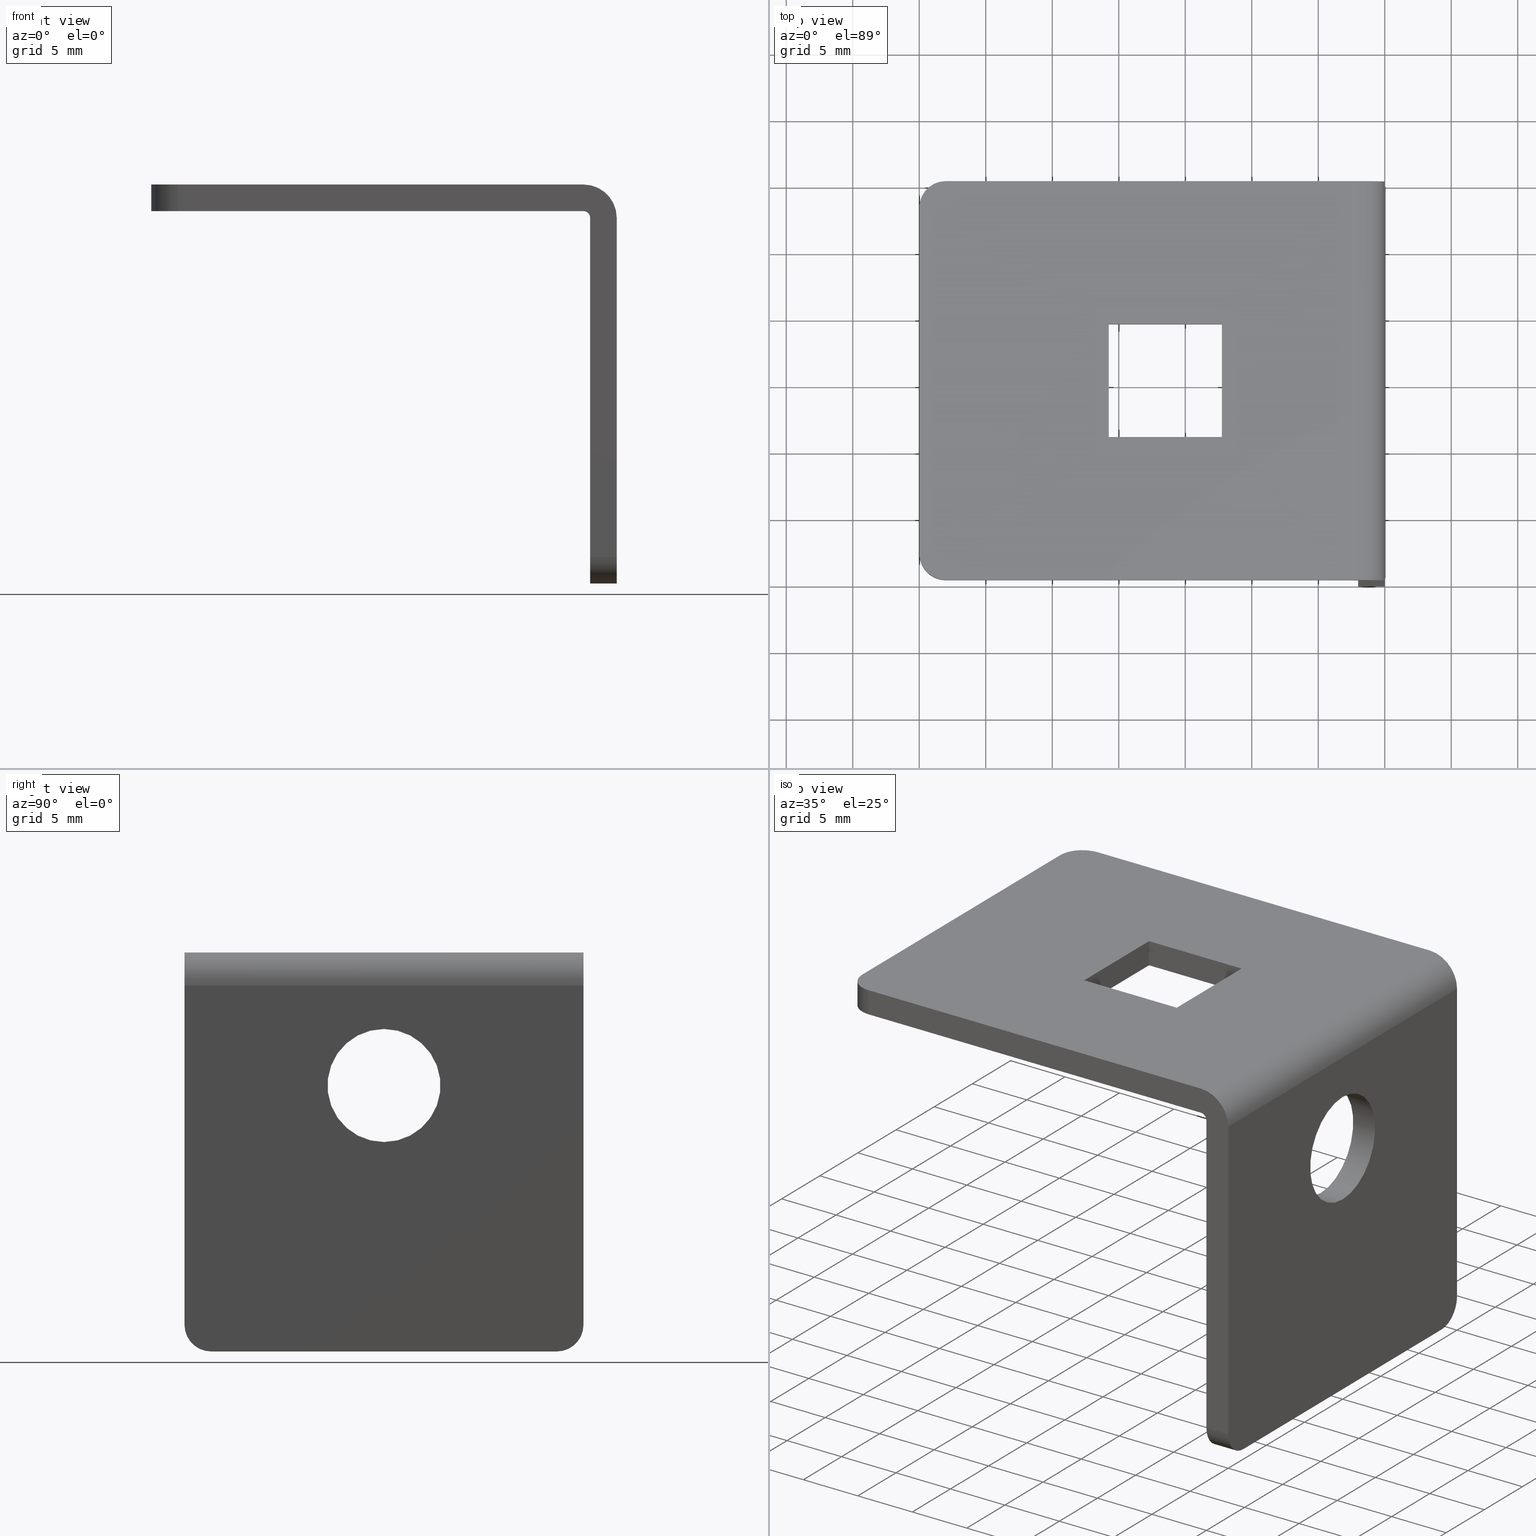
[diagram: canonical four-view strip — front | top / right | iso, engineering-drawing reading convention]
A machine part, canonical four-view strip (front | top / right | iso — engineering-drawing reading convention). The complete STEP part file that produces these views, byte-faithful:
ISO-10303-21;
HEADER;
/* Generated by software containing ST-Developer
 * from STEP Tools, Inc. (www.steptools.com) 
 */

FILE_DESCRIPTION(
/* description */ ('LAMIERINO DI FIX PROF. 60 CON PROFI.30'),
/* implementation_level */ '2;1');

FILE_NAME(
/* name */ 
'Q:\\Catalogo\\2_Accessori Dierre\\Per Download Web e catalogo cartace
o\\CATALOGO ELEMENTI ASSEMBLAGGIO\\PAGINA 21\\DANXX0000169.stp',
/* time_stamp */ '2018-06-19T09:06:23+02:00',
/* author */ ('fzagni'),
/* organization */ (''),
/* preprocessor_version */ 'ST-DEVELOPER v16.1',
/* originating_system */ 'Autodesk Inventor 2016',
/* authorisation */ '');

FILE_SCHEMA (('AUTOMOTIVE_DESIGN { 1 0 10303 214 3 1 1 }'));
ENDSEC;

DATA;
#10=MECHANICAL_DESIGN_GEOMETRIC_PRESENTATION_REPRESENTATION('',(#13),#677);
#11=SHAPE_REPRESENTATION_RELATIONSHIP('SRR','None',#686,#12);
#12=ADVANCED_BREP_SHAPE_REPRESENTATION('',(#14),#676);
#13=STYLED_ITEM('',(#695),#14);
#14=MANIFOLD_SOLID_BREP('Solido1',#407);
#15=FACE_BOUND('',#62,.T.);
#16=FACE_BOUND('',#68,.T.);
#17=FACE_BOUND('',#72,.T.);
#18=FACE_BOUND('',#82,.T.);
#19=FACE_BOUND('',#86,.T.);
#20=PLANE('',#412);
#21=PLANE('',#413);
#22=PLANE('',#418);
#23=PLANE('',#422);
#24=PLANE('',#423);
#25=PLANE('',#427);
#26=PLANE('',#430);
#27=PLANE('',#431);
#28=PLANE('',#432);
#29=PLANE('',#433);
#30=PLANE('',#437);
#31=PLANE('',#438);
#32=PLANE('',#440);
#33=PLANE('',#442);
#34=PLANE('',#444);
#35=PLANE('',#445);
#36=FACE_OUTER_BOUND('',#59,.T.);
#37=FACE_OUTER_BOUND('',#60,.T.);
#38=FACE_OUTER_BOUND('',#61,.T.);
#39=FACE_OUTER_BOUND('',#63,.T.);
#40=FACE_OUTER_BOUND('',#64,.T.);
#41=FACE_OUTER_BOUND('',#65,.T.);
#42=FACE_OUTER_BOUND('',#66,.T.);
#43=FACE_OUTER_BOUND('',#67,.T.);
#44=FACE_OUTER_BOUND('',#69,.T.);
#45=FACE_OUTER_BOUND('',#70,.T.);
#46=FACE_OUTER_BOUND('',#71,.T.);
#47=FACE_OUTER_BOUND('',#73,.T.);
#48=FACE_OUTER_BOUND('',#74,.T.);
#49=FACE_OUTER_BOUND('',#75,.T.);
#50=FACE_OUTER_BOUND('',#76,.T.);
#51=FACE_OUTER_BOUND('',#77,.T.);
#52=FACE_OUTER_BOUND('',#78,.T.);
#53=FACE_OUTER_BOUND('',#79,.T.);
#54=FACE_OUTER_BOUND('',#80,.T.);
#55=FACE_OUTER_BOUND('',#81,.T.);
#56=FACE_OUTER_BOUND('',#83,.T.);
#57=FACE_OUTER_BOUND('',#84,.T.);
#58=FACE_OUTER_BOUND('',#85,.T.);
#59=EDGE_LOOP('',(#269,#270,#271,#272));
#60=EDGE_LOOP('',(#273,#274,#275,#276));
#61=EDGE_LOOP('',(#277,#278,#279,#280,#281,#282));
#62=EDGE_LOOP('',(#283));
#63=EDGE_LOOP('',(#284,#285,#286,#287));
#64=EDGE_LOOP('',(#288,#289,#290,#291));
#65=EDGE_LOOP('',(#292,#293,#294,#295));
#66=EDGE_LOOP('',(#296,#297,#298,#299));
#67=EDGE_LOOP('',(#300,#301,#302,#303,#304,#305));
#68=EDGE_LOOP('',(#306,#307,#308,#309));
#69=EDGE_LOOP('',(#310,#311,#312,#313));
#70=EDGE_LOOP('',(#314,#315,#316,#317));
#71=EDGE_LOOP('',(#318));
#72=EDGE_LOOP('',(#319));
#73=EDGE_LOOP('',(#320,#321,#322,#323));
#74=EDGE_LOOP('',(#324,#325,#326,#327));
#75=EDGE_LOOP('',(#328,#329,#330,#331));
#76=EDGE_LOOP('',(#332,#333,#334,#335));
#77=EDGE_LOOP('',(#336,#337,#338,#339));
#78=EDGE_LOOP('',(#340,#341,#342,#343));
#79=EDGE_LOOP('',(#344,#345,#346,#347));
#80=EDGE_LOOP('',(#348,#349,#350,#351));
#81=EDGE_LOOP('',(#352,#353,#354,#355,#356,#357));
#82=EDGE_LOOP('',(#358));
#83=EDGE_LOOP('',(#359,#360,#361,#362));
#84=EDGE_LOOP('',(#363,#364,#365,#366));
#85=EDGE_LOOP('',(#367,#368,#369,#370,#371,#372));
#86=EDGE_LOOP('',(#373,#374,#375,#376));
#87=LINE('',#568,#127);
#88=LINE('',#571,#128);
#89=LINE('',#574,#129);
#90=LINE('',#576,#130);
#91=LINE('',#577,#131);
#92=LINE('',#580,#132);
#93=LINE('',#582,#133);
#94=LINE('',#584,#134);
#95=LINE('',#591,#135);
#96=LINE('',#594,#136);
#97=LINE('',#595,#137);
#98=LINE('',#601,#138);
#99=LINE('',#604,#139);
#100=LINE('',#607,#140);
#101=LINE('',#609,#141);
#102=LINE('',#610,#142);
#103=LINE('',#613,#143);
#104=LINE('',#617,#144);
#105=LINE('',#618,#145);
#106=LINE('',#621,#146);
#107=LINE('',#623,#147);
#108=LINE('',#625,#148);
#109=LINE('',#626,#149);
#110=LINE('',#629,#150);
#111=LINE('',#632,#151);
#112=LINE('',#635,#152);
#113=LINE('',#636,#153);
#114=LINE('',#643,#154);
#115=LINE('',#644,#155);
#116=LINE('',#645,#156);
#117=LINE('',#648,#157);
#118=LINE('',#649,#158);
#119=LINE('',#652,#159);
#120=LINE('',#653,#160);
#121=LINE('',#655,#161);
#122=LINE('',#658,#162);
#123=LINE('',#662,#163);
#124=LINE('',#663,#164);
#125=LINE('',#670,#165);
#126=LINE('',#672,#166);
#127=VECTOR('',#452,2.);
#128=VECTOR('',#455,2.);
#129=VECTOR('',#458,26.);
#130=VECTOR('',#459,2.);
#131=VECTOR('',#460,26.);
#132=VECTOR('',#463,25.5);
#133=VECTOR('',#464,30.);
#134=VECTOR('',#465,25.5);
#135=VECTOR('',#474,2.);
#136=VECTOR('',#477,2.);
#137=VECTOR('',#478,25.5);
#138=VECTOR('',#483,2.);
#139=VECTOR('',#486,2.);
#140=VECTOR('',#489,30.5);
#141=VECTOR('',#490,2.);
#142=VECTOR('',#491,30.5);
#143=VECTOR('',#494,26.);
#144=VECTOR('',#497,30.5);
#145=VECTOR('',#498,30.);
#146=VECTOR('',#499,8.5);
#147=VECTOR('',#500,8.5);
#148=VECTOR('',#501,8.5);
#149=VECTOR('',#502,8.5);
#150=VECTOR('',#505,2.);
#151=VECTOR('',#508,2.);
#152=VECTOR('',#511,30.5);
#153=VECTOR('',#512,2.);
#154=VECTOR('',#519,8.5);
#155=VECTOR('',#520,2.);
#156=VECTOR('',#521,2.);
#157=VECTOR('',#524,8.5);
#158=VECTOR('',#525,2.);
#159=VECTOR('',#528,8.5);
#160=VECTOR('',#529,2.);
#161=VECTOR('',#532,8.5);
#162=VECTOR('',#535,30.);
#163=VECTOR('',#542,25.5);
#164=VECTOR('',#543,2.);
#165=VECTOR('',#556,30.);
#166=VECTOR('',#559,26.);
#167=CIRCLE('',#410,2.);
#168=CIRCLE('',#411,2.);
#169=CIRCLE('',#414,2.);
#170=CIRCLE('',#415,4.25);
#171=CIRCLE('',#417,2.);
#172=CIRCLE('',#420,2.);
#173=CIRCLE('',#421,2.);
#174=CIRCLE('',#424,2.);
#175=CIRCLE('',#426,2.);
#176=CIRCLE('',#429,4.25);
#177=CIRCLE('',#435,2.5);
#178=CIRCLE('',#436,2.5);
#179=CIRCLE('',#439,0.499999999999998);
#180=CIRCLE('',#441,0.499999999999998);
#181=VERTEX_POINT('',#564);
#182=VERTEX_POINT('',#565);
#183=VERTEX_POINT('',#567);
#184=VERTEX_POINT('',#569);
#185=VERTEX_POINT('',#573);
#186=VERTEX_POINT('',#575);
#187=VERTEX_POINT('',#579);
#188=VERTEX_POINT('',#581);
#189=VERTEX_POINT('',#583);
#190=VERTEX_POINT('',#586);
#191=VERTEX_POINT('',#589);
#192=VERTEX_POINT('',#593);
#193=VERTEX_POINT('',#597);
#194=VERTEX_POINT('',#598);
#195=VERTEX_POINT('',#600);
#196=VERTEX_POINT('',#602);
#197=VERTEX_POINT('',#606);
#198=VERTEX_POINT('',#608);
#199=VERTEX_POINT('',#612);
#200=VERTEX_POINT('',#614);
#201=VERTEX_POINT('',#616);
#202=VERTEX_POINT('',#619);
#203=VERTEX_POINT('',#620);
#204=VERTEX_POINT('',#622);
#205=VERTEX_POINT('',#624);
#206=VERTEX_POINT('',#628);
#207=VERTEX_POINT('',#630);
#208=VERTEX_POINT('',#634);
#209=VERTEX_POINT('',#638);
#210=VERTEX_POINT('',#641);
#211=VERTEX_POINT('',#642);
#212=VERTEX_POINT('',#647);
#213=VERTEX_POINT('',#651);
#214=VERTEX_POINT('',#657);
#215=EDGE_CURVE('',#181,#182,#167,.T.);
#216=EDGE_CURVE('',#182,#183,#87,.T.);
#217=EDGE_CURVE('',#183,#184,#168,.T.);
#218=EDGE_CURVE('',#184,#181,#88,.T.);
#219=EDGE_CURVE('',#185,#184,#89,.T.);
#220=EDGE_CURVE('',#186,#185,#90,.T.);
#221=EDGE_CURVE('',#186,#181,#91,.T.);
#222=EDGE_CURVE('',#183,#187,#92,.T.);
#223=EDGE_CURVE('',#187,#188,#93,.T.);
#224=EDGE_CURVE('',#189,#188,#94,.T.);
#225=EDGE_CURVE('',#185,#189,#169,.T.);
#226=EDGE_CURVE('',#190,#190,#170,.T.);
#227=EDGE_CURVE('',#191,#186,#171,.T.);
#228=EDGE_CURVE('',#189,#191,#95,.T.);
#229=EDGE_CURVE('',#188,#192,#96,.T.);
#230=EDGE_CURVE('',#192,#191,#97,.T.);
#231=EDGE_CURVE('',#193,#194,#172,.T.);
#232=EDGE_CURVE('',#194,#195,#98,.T.);
#233=EDGE_CURVE('',#195,#196,#173,.T.);
#234=EDGE_CURVE('',#196,#193,#99,.T.);
#235=EDGE_CURVE('',#194,#197,#100,.T.);
#236=EDGE_CURVE('',#197,#198,#101,.T.);
#237=EDGE_CURVE('',#198,#195,#102,.T.);
#238=EDGE_CURVE('',#199,#193,#103,.T.);
#239=EDGE_CURVE('',#200,#199,#174,.T.);
#240=EDGE_CURVE('',#201,#200,#104,.T.);
#241=EDGE_CURVE('',#201,#197,#105,.T.);
#242=EDGE_CURVE('',#202,#203,#106,.T.);
#243=EDGE_CURVE('',#203,#204,#107,.T.);
#244=EDGE_CURVE('',#204,#205,#108,.T.);
#245=EDGE_CURVE('',#205,#202,#109,.T.);
#246=EDGE_CURVE('',#199,#206,#110,.T.);
#247=EDGE_CURVE('',#206,#207,#175,.T.);
#248=EDGE_CURVE('',#207,#200,#111,.T.);
#249=EDGE_CURVE('',#207,#208,#112,.T.);
#250=EDGE_CURVE('',#208,#201,#113,.T.);
#251=EDGE_CURVE('',#209,#209,#176,.T.);
#252=EDGE_CURVE('',#210,#211,#114,.T.);
#253=EDGE_CURVE('',#210,#203,#115,.T.);
#254=EDGE_CURVE('',#211,#202,#116,.T.);
#255=EDGE_CURVE('',#212,#210,#117,.T.);
#256=EDGE_CURVE('',#212,#204,#118,.T.);
#257=EDGE_CURVE('',#213,#212,#119,.T.);
#258=EDGE_CURVE('',#213,#205,#120,.T.);
#259=EDGE_CURVE('',#211,#213,#121,.T.);
#260=EDGE_CURVE('',#192,#214,#122,.T.);
#261=EDGE_CURVE('',#197,#192,#177,.T.);
#262=EDGE_CURVE('',#214,#201,#178,.T.);
#263=EDGE_CURVE('',#182,#214,#123,.T.);
#264=EDGE_CURVE('',#214,#187,#124,.T.);
#265=EDGE_CURVE('',#188,#198,#179,.T.);
#266=EDGE_CURVE('',#187,#208,#180,.T.);
#267=EDGE_CURVE('',#198,#208,#125,.T.);
#268=EDGE_CURVE('',#196,#206,#126,.T.);
#269=ORIENTED_EDGE('',*,*,#215,.T.);
#270=ORIENTED_EDGE('',*,*,#216,.T.);
#271=ORIENTED_EDGE('',*,*,#217,.T.);
#272=ORIENTED_EDGE('',*,*,#218,.T.);
#273=ORIENTED_EDGE('',*,*,#218,.F.);
#274=ORIENTED_EDGE('',*,*,#219,.F.);
#275=ORIENTED_EDGE('',*,*,#220,.F.);
#276=ORIENTED_EDGE('',*,*,#221,.T.);
#277=ORIENTED_EDGE('',*,*,#217,.F.);
#278=ORIENTED_EDGE('',*,*,#222,.T.);
#279=ORIENTED_EDGE('',*,*,#223,.T.);
#280=ORIENTED_EDGE('',*,*,#224,.F.);
#281=ORIENTED_EDGE('',*,*,#225,.F.);
#282=ORIENTED_EDGE('',*,*,#219,.T.);
#283=ORIENTED_EDGE('',*,*,#226,.T.);
#284=ORIENTED_EDGE('',*,*,#227,.T.);
#285=ORIENTED_EDGE('',*,*,#220,.T.);
#286=ORIENTED_EDGE('',*,*,#225,.T.);
#287=ORIENTED_EDGE('',*,*,#228,.T.);
#288=ORIENTED_EDGE('',*,*,#228,.F.);
#289=ORIENTED_EDGE('',*,*,#224,.T.);
#290=ORIENTED_EDGE('',*,*,#229,.T.);
#291=ORIENTED_EDGE('',*,*,#230,.T.);
#292=ORIENTED_EDGE('',*,*,#231,.T.);
#293=ORIENTED_EDGE('',*,*,#232,.T.);
#294=ORIENTED_EDGE('',*,*,#233,.T.);
#295=ORIENTED_EDGE('',*,*,#234,.T.);
#296=ORIENTED_EDGE('',*,*,#232,.F.);
#297=ORIENTED_EDGE('',*,*,#235,.T.);
#298=ORIENTED_EDGE('',*,*,#236,.T.);
#299=ORIENTED_EDGE('',*,*,#237,.T.);
#300=ORIENTED_EDGE('',*,*,#231,.F.);
#301=ORIENTED_EDGE('',*,*,#238,.F.);
#302=ORIENTED_EDGE('',*,*,#239,.F.);
#303=ORIENTED_EDGE('',*,*,#240,.F.);
#304=ORIENTED_EDGE('',*,*,#241,.T.);
#305=ORIENTED_EDGE('',*,*,#235,.F.);
#306=ORIENTED_EDGE('',*,*,#242,.T.);
#307=ORIENTED_EDGE('',*,*,#243,.T.);
#308=ORIENTED_EDGE('',*,*,#244,.T.);
#309=ORIENTED_EDGE('',*,*,#245,.T.);
#310=ORIENTED_EDGE('',*,*,#239,.T.);
#311=ORIENTED_EDGE('',*,*,#246,.T.);
#312=ORIENTED_EDGE('',*,*,#247,.T.);
#313=ORIENTED_EDGE('',*,*,#248,.T.);
#314=ORIENTED_EDGE('',*,*,#248,.F.);
#315=ORIENTED_EDGE('',*,*,#249,.T.);
#316=ORIENTED_EDGE('',*,*,#250,.T.);
#317=ORIENTED_EDGE('',*,*,#240,.T.);
#318=ORIENTED_EDGE('',*,*,#251,.F.);
#319=ORIENTED_EDGE('',*,*,#226,.F.);
#320=ORIENTED_EDGE('',*,*,#252,.F.);
#321=ORIENTED_EDGE('',*,*,#253,.T.);
#322=ORIENTED_EDGE('',*,*,#242,.F.);
#323=ORIENTED_EDGE('',*,*,#254,.F.);
#324=ORIENTED_EDGE('',*,*,#255,.F.);
#325=ORIENTED_EDGE('',*,*,#256,.T.);
#326=ORIENTED_EDGE('',*,*,#243,.F.);
#327=ORIENTED_EDGE('',*,*,#253,.F.);
#328=ORIENTED_EDGE('',*,*,#257,.F.);
#329=ORIENTED_EDGE('',*,*,#258,.T.);
#330=ORIENTED_EDGE('',*,*,#244,.F.);
#331=ORIENTED_EDGE('',*,*,#256,.F.);
#332=ORIENTED_EDGE('',*,*,#259,.F.);
#333=ORIENTED_EDGE('',*,*,#254,.T.);
#334=ORIENTED_EDGE('',*,*,#245,.F.);
#335=ORIENTED_EDGE('',*,*,#258,.F.);
#336=ORIENTED_EDGE('',*,*,#260,.F.);
#337=ORIENTED_EDGE('',*,*,#261,.F.);
#338=ORIENTED_EDGE('',*,*,#241,.F.);
#339=ORIENTED_EDGE('',*,*,#262,.F.);
#340=ORIENTED_EDGE('',*,*,#216,.F.);
#341=ORIENTED_EDGE('',*,*,#263,.T.);
#342=ORIENTED_EDGE('',*,*,#264,.T.);
#343=ORIENTED_EDGE('',*,*,#222,.F.);
#344=ORIENTED_EDGE('',*,*,#229,.F.);
#345=ORIENTED_EDGE('',*,*,#265,.T.);
#346=ORIENTED_EDGE('',*,*,#236,.F.);
#347=ORIENTED_EDGE('',*,*,#261,.T.);
#348=ORIENTED_EDGE('',*,*,#264,.F.);
#349=ORIENTED_EDGE('',*,*,#262,.T.);
#350=ORIENTED_EDGE('',*,*,#250,.F.);
#351=ORIENTED_EDGE('',*,*,#266,.F.);
#352=ORIENTED_EDGE('',*,*,#215,.F.);
#353=ORIENTED_EDGE('',*,*,#221,.F.);
#354=ORIENTED_EDGE('',*,*,#227,.F.);
#355=ORIENTED_EDGE('',*,*,#230,.F.);
#356=ORIENTED_EDGE('',*,*,#260,.T.);
#357=ORIENTED_EDGE('',*,*,#263,.F.);
#358=ORIENTED_EDGE('',*,*,#251,.T.);
#359=ORIENTED_EDGE('',*,*,#223,.F.);
#360=ORIENTED_EDGE('',*,*,#266,.T.);
#361=ORIENTED_EDGE('',*,*,#267,.F.);
#362=ORIENTED_EDGE('',*,*,#265,.F.);
#363=ORIENTED_EDGE('',*,*,#234,.F.);
#364=ORIENTED_EDGE('',*,*,#268,.T.);
#365=ORIENTED_EDGE('',*,*,#246,.F.);
#366=ORIENTED_EDGE('',*,*,#238,.T.);
#367=ORIENTED_EDGE('',*,*,#233,.F.);
#368=ORIENTED_EDGE('',*,*,#237,.F.);
#369=ORIENTED_EDGE('',*,*,#267,.T.);
#370=ORIENTED_EDGE('',*,*,#249,.F.);
#371=ORIENTED_EDGE('',*,*,#247,.F.);
#372=ORIENTED_EDGE('',*,*,#268,.F.);
#373=ORIENTED_EDGE('',*,*,#252,.T.);
#374=ORIENTED_EDGE('',*,*,#259,.T.);
#375=ORIENTED_EDGE('',*,*,#257,.T.);
#376=ORIENTED_EDGE('',*,*,#255,.T.);
#377=CYLINDRICAL_SURFACE('',#409,2.);
#378=CYLINDRICAL_SURFACE('',#416,2.);
#379=CYLINDRICAL_SURFACE('',#419,2.);
#380=CYLINDRICAL_SURFACE('',#425,2.);
#381=CYLINDRICAL_SURFACE('',#428,4.25);
#382=CYLINDRICAL_SURFACE('',#434,2.5);
#383=CYLINDRICAL_SURFACE('',#443,0.499999999999998);
#384=ADVANCED_FACE('',(#36),#377,.T.);
#385=ADVANCED_FACE('',(#37),#20,.T.);
#386=ADVANCED_FACE('',(#38,#15),#21,.F.);
#387=ADVANCED_FACE('',(#39),#378,.T.);
#388=ADVANCED_FACE('',(#40),#22,.T.);
#389=ADVANCED_FACE('',(#41),#379,.T.);
#390=ADVANCED_FACE('',(#42),#23,.T.);
#391=ADVANCED_FACE('',(#43,#16),#24,.T.);
#392=ADVANCED_FACE('',(#44),#380,.T.);
#393=ADVANCED_FACE('',(#45),#25,.T.);
#394=ADVANCED_FACE('',(#46,#17),#381,.F.);
#395=ADVANCED_FACE('',(#47),#26,.F.);
#396=ADVANCED_FACE('',(#48),#27,.F.);
#397=ADVANCED_FACE('',(#49),#28,.F.);
#398=ADVANCED_FACE('',(#50),#29,.F.);
#399=ADVANCED_FACE('',(#51),#382,.T.);
#400=ADVANCED_FACE('',(#52),#30,.T.);
#401=ADVANCED_FACE('',(#53),#31,.T.);
#402=ADVANCED_FACE('',(#54),#32,.T.);
#403=ADVANCED_FACE('',(#55,#18),#33,.T.);
#404=ADVANCED_FACE('',(#56),#383,.F.);
#405=ADVANCED_FACE('',(#57),#34,.T.);
#406=ADVANCED_FACE('',(#58,#19),#35,.F.);
#407=CLOSED_SHELL('',(#384,#385,#386,#387,#388,#389,#390,#391,#392,#393,
#394,#395,#396,#397,#398,#399,#400,#401,#402,#403,#404,#405,#406));
#408=AXIS2_PLACEMENT_3D('placement',#562,#446,#447);
#409=AXIS2_PLACEMENT_3D('',#563,#448,#449);
#410=AXIS2_PLACEMENT_3D('',#566,#450,#451);
#411=AXIS2_PLACEMENT_3D('',#570,#453,#454);
#412=AXIS2_PLACEMENT_3D('',#572,#456,#457);
#413=AXIS2_PLACEMENT_3D('',#578,#461,#462);
#414=AXIS2_PLACEMENT_3D('',#585,#466,#467);
#415=AXIS2_PLACEMENT_3D('',#587,#468,#469);
#416=AXIS2_PLACEMENT_3D('',#588,#470,#471);
#417=AXIS2_PLACEMENT_3D('',#590,#472,#473);
#418=AXIS2_PLACEMENT_3D('',#592,#475,#476);
#419=AXIS2_PLACEMENT_3D('',#596,#479,#480);
#420=AXIS2_PLACEMENT_3D('',#599,#481,#482);
#421=AXIS2_PLACEMENT_3D('',#603,#484,#485);
#422=AXIS2_PLACEMENT_3D('',#605,#487,#488);
#423=AXIS2_PLACEMENT_3D('',#611,#492,#493);
#424=AXIS2_PLACEMENT_3D('',#615,#495,#496);
#425=AXIS2_PLACEMENT_3D('',#627,#503,#504);
#426=AXIS2_PLACEMENT_3D('',#631,#506,#507);
#427=AXIS2_PLACEMENT_3D('',#633,#509,#510);
#428=AXIS2_PLACEMENT_3D('',#637,#513,#514);
#429=AXIS2_PLACEMENT_3D('',#639,#515,#516);
#430=AXIS2_PLACEMENT_3D('',#640,#517,#518);
#431=AXIS2_PLACEMENT_3D('',#646,#522,#523);
#432=AXIS2_PLACEMENT_3D('',#650,#526,#527);
#433=AXIS2_PLACEMENT_3D('',#654,#530,#531);
#434=AXIS2_PLACEMENT_3D('',#656,#533,#534);
#435=AXIS2_PLACEMENT_3D('',#659,#536,#537);
#436=AXIS2_PLACEMENT_3D('',#660,#538,#539);
#437=AXIS2_PLACEMENT_3D('',#661,#540,#541);
#438=AXIS2_PLACEMENT_3D('',#664,#544,#545);
#439=AXIS2_PLACEMENT_3D('',#665,#546,#547);
#440=AXIS2_PLACEMENT_3D('',#666,#548,#549);
#441=AXIS2_PLACEMENT_3D('',#667,#550,#551);
#442=AXIS2_PLACEMENT_3D('',#668,#552,#553);
#443=AXIS2_PLACEMENT_3D('',#669,#554,#555);
#444=AXIS2_PLACEMENT_3D('',#671,#557,#558);
#445=AXIS2_PLACEMENT_3D('',#673,#560,#561);
#446=DIRECTION('axis',(0.,0.,1.));
#447=DIRECTION('refdir',(1.,0.,0.));
#448=DIRECTION('center_axis',(1.,0.,-1.71512449944288E-15));
#449=DIRECTION('ref_axis',(0.,-0.707106781186548,-0.707106781186548));
#450=DIRECTION('center_axis',(-1.,1.74451110989651E-19,1.71378285013161E-15));
#451=DIRECTION('ref_axis',(0.,-0.707106781186548,-0.707106781186548));
#452=DIRECTION('',(-1.,0.,1.71512449944288E-15));
#453=DIRECTION('center_axis',(1.,1.74451110989651E-19,-1.71378285013161E-15));
#454=DIRECTION('ref_axis',(0.,-0.707106781186548,-0.707106781186548));
#455=DIRECTION('',(1.,0.,-1.71512449944288E-15));
#456=DIRECTION('center_axis',(-1.71512449944288E-15,0.,-1.));
#457=DIRECTION('ref_axis',(-1.,0.,1.77635683940025E-15));
#458=DIRECTION('',(0.,-1.,0.));
#459=DIRECTION('',(-1.,0.,1.71512449944288E-15));
#460=DIRECTION('',(0.,-1.,0.));
#461=DIRECTION('center_axis',(1.,1.74451110989651E-19,-1.71378285013161E-15));
#462=DIRECTION('ref_axis',(-1.4210854715202E-15,0.,-1.));
#463=DIRECTION('',(1.77635683940025E-15,0.,1.));
#464=DIRECTION('',(-1.74451110989651E-19,1.,2.9920537441338E-34));
#465=DIRECTION('',(1.77635683940025E-15,0.,1.));
#466=DIRECTION('center_axis',(1.,1.74451110989651E-19,-1.71378285013161E-15));
#467=DIRECTION('ref_axis',(0.,0.707106781186548,-0.707106781186548));
#468=DIRECTION('center_axis',(1.,1.74451110989651E-19,-1.71378285013161E-15));
#469=DIRECTION('ref_axis',(1.71378285013161E-15,0.,1.));
#470=DIRECTION('center_axis',(1.,0.,-1.71512449944288E-15));
#471=DIRECTION('ref_axis',(0.,0.707106781186548,-0.707106781186548));
#472=DIRECTION('center_axis',(-1.,1.74451110989651E-19,1.71378285013161E-15));
#473=DIRECTION('ref_axis',(0.,0.707106781186548,-0.707106781186548));
#474=DIRECTION('',(1.,0.,-1.71512449944288E-15));
#475=DIRECTION('center_axis',(0.,1.,0.));
#476=DIRECTION('ref_axis',(1.,0.,-1.70974345792274E-15));
#477=DIRECTION('',(1.,0.,-1.71512449944288E-15));
#478=DIRECTION('',(-1.71512449944288E-15,0.,-1.));
#479=DIRECTION('center_axis',(0.,0.,1.));
#480=DIRECTION('ref_axis',(-0.707106781186547,0.707106781186548,0.));
#481=DIRECTION('center_axis',(0.,0.,-1.));
#482=DIRECTION('ref_axis',(-0.707106781186547,0.707106781186548,0.));
#483=DIRECTION('',(0.,0.,-1.));
#484=DIRECTION('center_axis',(0.,0.,1.));
#485=DIRECTION('ref_axis',(-0.707106781186547,0.707106781186548,0.));
#486=DIRECTION('',(0.,0.,1.));
#487=DIRECTION('center_axis',(0.,1.,0.));
#488=DIRECTION('ref_axis',(0.,0.,1.));
#489=DIRECTION('',(1.,0.,0.));
#490=DIRECTION('',(0.,0.,-1.));
#491=DIRECTION('',(-1.,0.,0.));
#492=DIRECTION('center_axis',(0.,0.,1.));
#493=DIRECTION('ref_axis',(1.,0.,0.));
#494=DIRECTION('',(0.,1.,0.));
#495=DIRECTION('center_axis',(0.,0.,-1.));
#496=DIRECTION('ref_axis',(-0.707106781186548,-0.707106781186547,0.));
#497=DIRECTION('',(-1.,0.,0.));
#498=DIRECTION('',(0.,1.,0.));
#499=DIRECTION('',(0.,-1.,0.));
#500=DIRECTION('',(-1.,0.,0.));
#501=DIRECTION('',(0.,1.,0.));
#502=DIRECTION('',(1.,0.,0.));
#503=DIRECTION('center_axis',(0.,0.,1.));
#504=DIRECTION('ref_axis',(-0.707106781186548,-0.707106781186547,0.));
#505=DIRECTION('',(0.,0.,-1.));
#506=DIRECTION('center_axis',(0.,0.,1.));
#507=DIRECTION('ref_axis',(-0.707106781186548,-0.707106781186547,0.));
#508=DIRECTION('',(0.,0.,1.));
#509=DIRECTION('center_axis',(0.,-1.,0.));
#510=DIRECTION('ref_axis',(0.,0.,-1.));
#511=DIRECTION('',(1.,0.,0.));
#512=DIRECTION('',(0.,0.,1.));
#513=DIRECTION('center_axis',(-1.,-1.74451110989651E-19,1.71378285013161E-15));
#514=DIRECTION('ref_axis',(1.71378285013161E-15,0.,1.));
#515=DIRECTION('center_axis',(-1.,1.74451110989651E-19,1.71378285013161E-15));
#516=DIRECTION('ref_axis',(1.71378285013161E-15,0.,1.));
#517=DIRECTION('center_axis',(1.,0.,0.));
#518=DIRECTION('ref_axis',(0.,1.,0.));
#519=DIRECTION('',(0.,1.,0.));
#520=DIRECTION('',(0.,0.,1.));
#521=DIRECTION('',(0.,0.,1.));
#522=DIRECTION('center_axis',(0.,-1.,0.));
#523=DIRECTION('ref_axis',(1.,0.,0.));
#524=DIRECTION('',(1.,0.,0.));
#525=DIRECTION('',(0.,0.,1.));
#526=DIRECTION('center_axis',(-1.,0.,0.));
#527=DIRECTION('ref_axis',(0.,-1.,0.));
#528=DIRECTION('',(0.,-1.,0.));
#529=DIRECTION('',(0.,0.,1.));
#530=DIRECTION('center_axis',(0.,1.,0.));
#531=DIRECTION('ref_axis',(-1.,0.,0.));
#532=DIRECTION('',(-1.,0.,0.));
#533=DIRECTION('center_axis',(0.,1.,0.));
#534=DIRECTION('ref_axis',(0.,0.,1.));
#535=DIRECTION('',(-1.74451110989651E-19,-1.,2.99205374413381E-34));
#536=DIRECTION('center_axis',(0.,1.,0.));
#537=DIRECTION('ref_axis',(3.5527136788005E-15,0.,1.));
#538=DIRECTION('center_axis',(0.,-1.,0.));
#539=DIRECTION('ref_axis',(1.,0.,-1.72084568816899E-15));
#540=DIRECTION('center_axis',(0.,-1.,0.));
#541=DIRECTION('ref_axis',(-1.,0.,1.71529457304587E-15));
#542=DIRECTION('',(1.77635683940025E-15,0.,1.));
#543=DIRECTION('',(-1.,0.,1.71512449944288E-15));
#544=DIRECTION('center_axis',(0.,1.,0.));
#545=DIRECTION('ref_axis',(0.,0.,1.));
#546=DIRECTION('center_axis',(0.,-1.,0.));
#547=DIRECTION('ref_axis',(1.,0.,-1.66533453693774E-15));
#548=DIRECTION('center_axis',(0.,-1.,0.));
#549=DIRECTION('ref_axis',(0.,0.,-1.));
#550=DIRECTION('center_axis',(0.,-1.,0.));
#551=DIRECTION('ref_axis',(1.,0.,-1.66533453693774E-15));
#552=DIRECTION('center_axis',(1.,-1.74451110989651E-19,-1.71378285013161E-15));
#553=DIRECTION('ref_axis',(-1.4210854715202E-15,0.,-1.));
#554=DIRECTION('center_axis',(0.,1.,0.));
#555=DIRECTION('ref_axis',(0.,0.,1.));
#556=DIRECTION('',(0.,-1.,0.));
#557=DIRECTION('center_axis',(-1.,0.,0.));
#558=DIRECTION('ref_axis',(0.,0.,1.));
#559=DIRECTION('',(0.,-1.,0.));
#560=DIRECTION('center_axis',(0.,0.,1.));
#561=DIRECTION('ref_axis',(1.,0.,0.));
#562=CARTESIAN_POINT('',(0.,0.,0.));
#563=CARTESIAN_POINT('Origin',(32.9999999999999,2.,-26.));
#564=CARTESIAN_POINT('',(34.9999999999999,2.,-28.));
#565=CARTESIAN_POINT('',(34.9999999999999,0.,-26.));
#566=CARTESIAN_POINT('Origin',(34.9999999999999,2.,-26.));
#567=CARTESIAN_POINT('',(32.9999999999999,0.,-26.));
#568=CARTESIAN_POINT('',(32.9999999999999,0.,-26.));
#569=CARTESIAN_POINT('',(32.9999999999999,2.,-28.));
#570=CARTESIAN_POINT('Origin',(32.9999999999999,2.,-26.));
#571=CARTESIAN_POINT('',(32.9999999999999,2.,-28.));
#572=CARTESIAN_POINT('Origin',(32.9999999999999,30.,-28.));
#573=CARTESIAN_POINT('',(32.9999999999999,28.,-28.));
#574=CARTESIAN_POINT('',(32.9999999999999,30.,-28.));
#575=CARTESIAN_POINT('',(34.9999999999999,28.,-28.));
#576=CARTESIAN_POINT('',(32.9999999999999,28.,-28.));
#577=CARTESIAN_POINT('',(34.9999999999999,30.,-28.));
#578=CARTESIAN_POINT('Origin',(33.,15.,-13.25));
#579=CARTESIAN_POINT('',(33.,0.,-0.499999999999998));
#580=CARTESIAN_POINT('',(33.,0.,3.50000000000001));
#581=CARTESIAN_POINT('',(33.,30.,-0.499999999999998));
#582=CARTESIAN_POINT('',(33.,15.,-0.500000000000003));
#583=CARTESIAN_POINT('',(32.9999999999999,30.,-26.));
#584=CARTESIAN_POINT('',(33.,30.,3.50000000000001));
#585=CARTESIAN_POINT('Origin',(32.9999999999999,28.,-26.));
#586=CARTESIAN_POINT('',(33.,15.,-3.75));
#587=CARTESIAN_POINT('Origin',(33.,15.,-8.));
#588=CARTESIAN_POINT('Origin',(32.9999999999999,28.,-26.));
#589=CARTESIAN_POINT('',(34.9999999999999,30.,-26.));
#590=CARTESIAN_POINT('Origin',(34.9999999999999,28.,-26.));
#591=CARTESIAN_POINT('',(32.9999999999999,30.,-26.));
#592=CARTESIAN_POINT('Origin',(33.,30.,-0.499999999999998));
#593=CARTESIAN_POINT('',(35.,30.,-0.500000000000003));
#594=CARTESIAN_POINT('',(33.3866197723676,30.,-0.499999999999998));
#595=CARTESIAN_POINT('',(35.,30.,-0.500000000000003));
#596=CARTESIAN_POINT('Origin',(2.,28.,0.));
#597=CARTESIAN_POINT('',(0.,28.,2.));
#598=CARTESIAN_POINT('',(2.,30.,2.));
#599=CARTESIAN_POINT('Origin',(2.,28.,2.));
#600=CARTESIAN_POINT('',(2.,30.,0.));
#601=CARTESIAN_POINT('',(2.,30.,0.));
#602=CARTESIAN_POINT('',(0.,28.,0.));
#603=CARTESIAN_POINT('Origin',(2.,28.,0.));
#604=CARTESIAN_POINT('',(0.,28.,0.));
#605=CARTESIAN_POINT('Origin',(0.,30.,0.));
#606=CARTESIAN_POINT('',(32.5,30.,2.));
#607=CARTESIAN_POINT('',(35.,30.,2.));
#608=CARTESIAN_POINT('',(32.5,30.,0.));
#609=CARTESIAN_POINT('',(32.5,30.,0.));
#610=CARTESIAN_POINT('',(35.,30.,0.));
#611=CARTESIAN_POINT('Origin',(17.5,15.,2.));
#612=CARTESIAN_POINT('',(0.,2.,2.));
#613=CARTESIAN_POINT('',(0.,30.,2.));
#614=CARTESIAN_POINT('',(2.,0.,2.));
#615=CARTESIAN_POINT('Origin',(2.,2.,2.));
#616=CARTESIAN_POINT('',(32.5,0.,2.));
#617=CARTESIAN_POINT('',(0.,0.,2.));
#618=CARTESIAN_POINT('',(32.5,7.5,2.));
#619=CARTESIAN_POINT('',(22.75,19.25,2.));
#620=CARTESIAN_POINT('',(22.75,10.75,2.));
#621=CARTESIAN_POINT('',(22.75,12.875,2.));
#622=CARTESIAN_POINT('',(14.25,10.75,2.));
#623=CARTESIAN_POINT('',(15.875,10.75,2.));
#624=CARTESIAN_POINT('',(14.25,19.25,2.));
#625=CARTESIAN_POINT('',(14.25,17.125,2.));
#626=CARTESIAN_POINT('',(20.125,19.25,2.));
#627=CARTESIAN_POINT('Origin',(2.,2.,0.));
#628=CARTESIAN_POINT('',(0.,2.,0.));
#629=CARTESIAN_POINT('',(0.,2.,0.));
#630=CARTESIAN_POINT('',(2.,0.,0.));
#631=CARTESIAN_POINT('Origin',(2.,2.,0.));
#632=CARTESIAN_POINT('',(2.,0.,0.));
#633=CARTESIAN_POINT('Origin',(35.,0.,0.));
#634=CARTESIAN_POINT('',(32.5,0.,0.));
#635=CARTESIAN_POINT('',(0.,0.,0.));
#636=CARTESIAN_POINT('',(32.5,0.,0.));
#637=CARTESIAN_POINT('Origin',(88.,15.,-8.00000000000009));
#638=CARTESIAN_POINT('',(35.,15.,-12.25));
#639=CARTESIAN_POINT('Origin',(35.,15.,-8.));
#640=CARTESIAN_POINT('Origin',(22.75,10.75,0.));
#641=CARTESIAN_POINT('',(22.75,10.75,0.));
#642=CARTESIAN_POINT('',(22.75,19.25,0.));
#643=CARTESIAN_POINT('',(22.75,12.875,0.));
#644=CARTESIAN_POINT('',(22.75,10.75,0.));
#645=CARTESIAN_POINT('',(22.75,19.25,0.));
#646=CARTESIAN_POINT('Origin',(14.25,10.75,0.));
#647=CARTESIAN_POINT('',(14.25,10.75,0.));
#648=CARTESIAN_POINT('',(15.875,10.75,0.));
#649=CARTESIAN_POINT('',(14.25,10.75,0.));
#650=CARTESIAN_POINT('Origin',(14.25,19.25,0.));
#651=CARTESIAN_POINT('',(14.25,19.25,0.));
#652=CARTESIAN_POINT('',(14.25,17.125,0.));
#653=CARTESIAN_POINT('',(14.25,19.25,0.));
#654=CARTESIAN_POINT('Origin',(22.75,19.25,0.));
#655=CARTESIAN_POINT('',(20.125,19.25,0.));
#656=CARTESIAN_POINT('Origin',(32.5,15.,-0.499999999999998));
#657=CARTESIAN_POINT('',(35.,0.,-0.500000000000003));
#658=CARTESIAN_POINT('',(35.,15.,-0.500000000000007));
#659=CARTESIAN_POINT('Origin',(32.5,30.,-0.499999999999998));
#660=CARTESIAN_POINT('Origin',(32.5,0.,-0.499999999999998));
#661=CARTESIAN_POINT('Origin',(33.,0.,-0.499999999999998));
#662=CARTESIAN_POINT('',(35.,0.,3.5));
#663=CARTESIAN_POINT('',(33.3866197723676,0.,-0.499999999999998));
#664=CARTESIAN_POINT('Origin',(33.,30.,-0.499999999999999));
#665=CARTESIAN_POINT('Origin',(32.5,30.,-0.499999999999998));
#666=CARTESIAN_POINT('Origin',(35.,0.,-0.500000000000003));
#667=CARTESIAN_POINT('Origin',(32.5,0.,-0.499999999999998));
#668=CARTESIAN_POINT('Origin',(35.,15.,-13.25));
#669=CARTESIAN_POINT('Origin',(32.5,15.,-0.499999999999998));
#670=CARTESIAN_POINT('',(32.5,7.5,0.));
#671=CARTESIAN_POINT('Origin',(0.,0.,0.));
#672=CARTESIAN_POINT('',(0.,30.,0.));
#673=CARTESIAN_POINT('Origin',(17.5,15.,0.));
#674=UNCERTAINTY_MEASURE_WITH_UNIT(LENGTH_MEASURE(0.01),#678,
'DISTANCE_ACCURACY_VALUE',
'Maximum model space distance between geometric entities at asserted c
onnectivities');
#675=UNCERTAINTY_MEASURE_WITH_UNIT(LENGTH_MEASURE(1.E-6),#678,
'DISTANCE_ACCURACY_VALUE',
'Maximum model space distance between geometric entities at asserted c
onnectivities');
#676=(
GEOMETRIC_REPRESENTATION_CONTEXT(3)
GLOBAL_UNCERTAINTY_ASSIGNED_CONTEXT((#674))
GLOBAL_UNIT_ASSIGNED_CONTEXT((#678,#681,#679))
REPRESENTATION_CONTEXT('','3D')
);
#677=(
GEOMETRIC_REPRESENTATION_CONTEXT(3)
GLOBAL_UNCERTAINTY_ASSIGNED_CONTEXT((#675))
GLOBAL_UNIT_ASSIGNED_CONTEXT((#678,#681,#679))
REPRESENTATION_CONTEXT('','3D')
);
#678=(
LENGTH_UNIT()
NAMED_UNIT(*)
SI_UNIT(.MILLI.,.METRE.)
);
#679=(
NAMED_UNIT(*)
SI_UNIT($,.STERADIAN.)
SOLID_ANGLE_UNIT()
);
#680=DIMENSIONAL_EXPONENTS(0.,0.,0.,0.,0.,0.,0.);
#681=(
CONVERSION_BASED_UNIT('degree',#683)
NAMED_UNIT(#680)
PLANE_ANGLE_UNIT()
);
#682=(
NAMED_UNIT(*)
PLANE_ANGLE_UNIT()
SI_UNIT($,.RADIAN.)
);
#683=PLANE_ANGLE_MEASURE_WITH_UNIT(PLANE_ANGLE_MEASURE(0.01745329252),#682);
#684=SHAPE_DEFINITION_REPRESENTATION(#685,#686);
#685=PRODUCT_DEFINITION_SHAPE('',$,#688);
#686=SHAPE_REPRESENTATION('',(#408),#676);
#687=PRODUCT_DEFINITION_CONTEXT('part definition',#692,'design');
#688=PRODUCT_DEFINITION('70AN00193-A','70AN00193-A',#689,#687);
#689=PRODUCT_DEFINITION_FORMATION('','A',#694);
#690=PRODUCT_RELATED_PRODUCT_CATEGORY('70AN00193-A','70AN00193-A',(#694));
#691=APPLICATION_PROTOCOL_DEFINITION('international standard',
'automotive_design',2009,#692);
#692=APPLICATION_CONTEXT(
'Core Data for Automotive Mechanical Design Process');
#693=PRODUCT_CONTEXT('part definition',#692,'mechanical');
#694=PRODUCT('70AN00193-A','70AN00193-A',$,(#693));
#695=PRESENTATION_STYLE_ASSIGNMENT((#696));
#696=SURFACE_STYLE_USAGE(.BOTH.,#697);
#697=SURFACE_SIDE_STYLE('',(#698));
#698=SURFACE_STYLE_FILL_AREA(#699);
#699=FILL_AREA_STYLE('',(#700));
#700=FILL_AREA_STYLE_COLOUR('',#701);
#701=COLOUR_RGB('',0.63921568627451,0.63921568627451,0.662745098039216);
ENDSEC;
END-ISO-10303-21;
